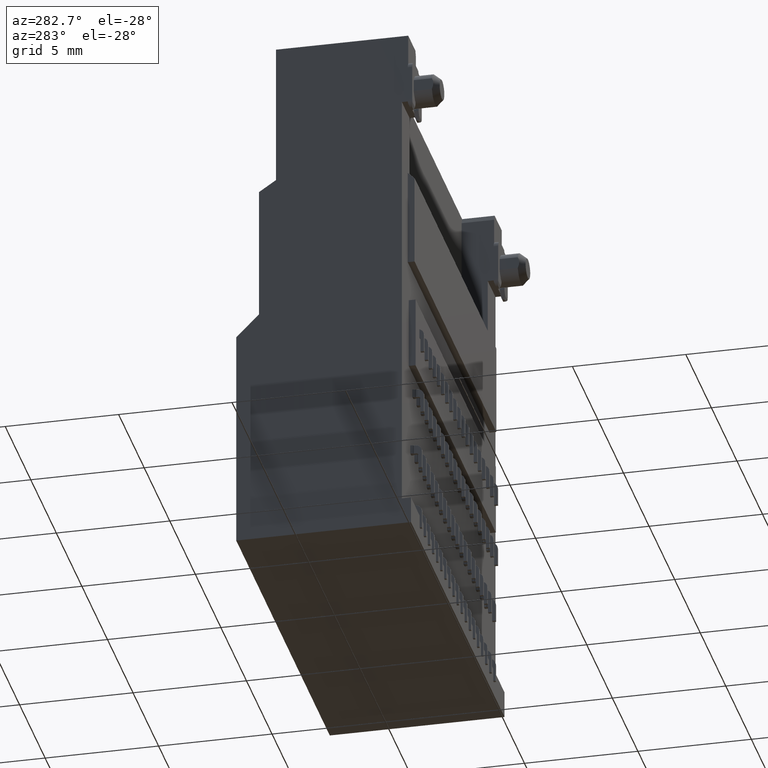
[diagram: clean part render]
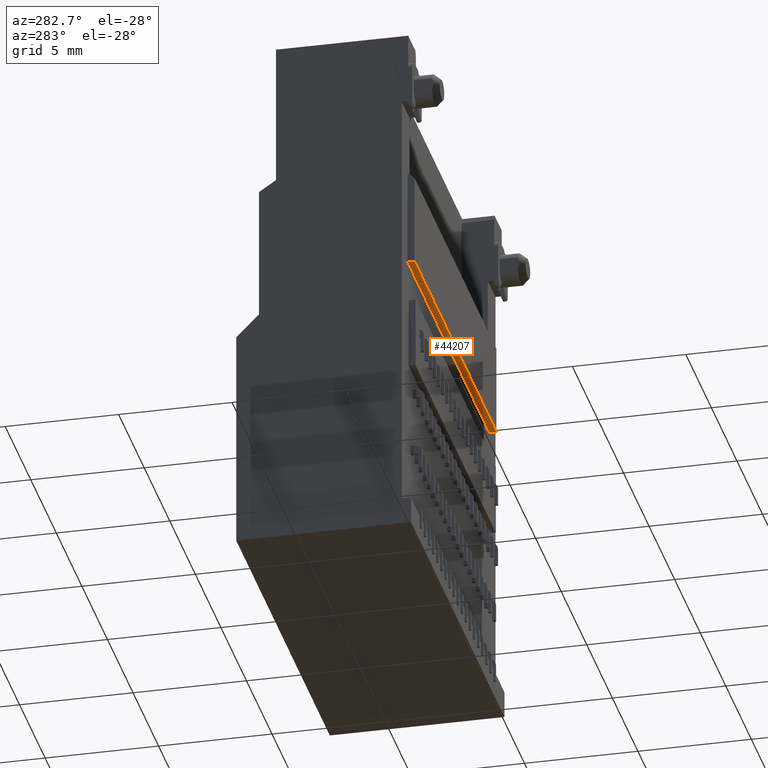
[diagram: same view with one face highlighted and labeled with its STEP entity id]
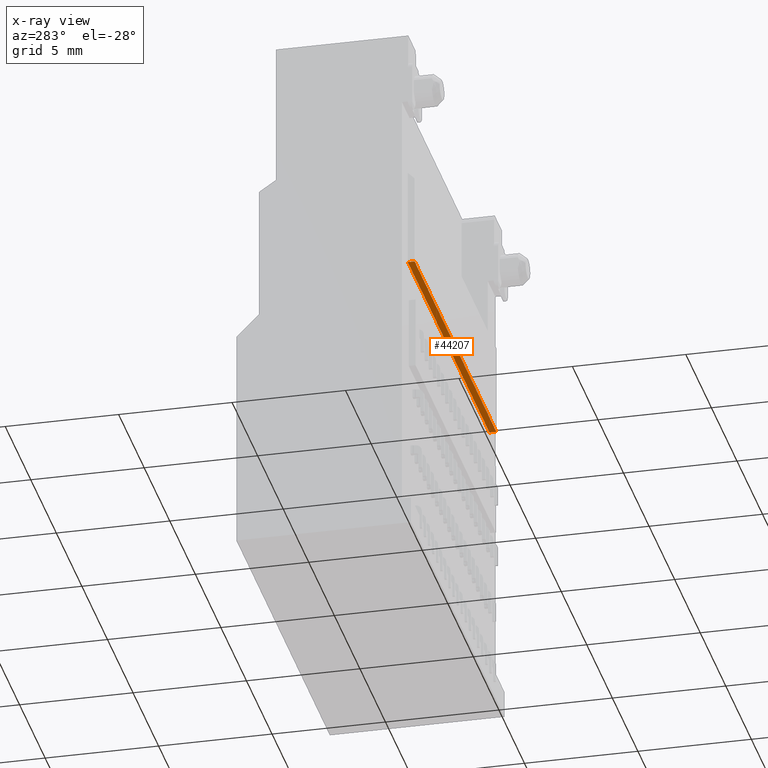
[diagram: x-ray of the same camera — body ghosted, the highlighted face saturated]
A machine part, auxiliary view. The second image highlights one B-rep face of the part: STEP entity #44207.
The next image is the same camera in x-ray: the body ghosted, the highlighted face saturated — about 0% of this face is hidden behind the body in this view.
In plain terms, the highlighted planar face has unit normal (0, 0, 1).
Its self-contained STEP definition (entity closure, byte-faithful):
#1659 = LINE ( 'NONE', #16921, #62890 ) ;
#3565 = EDGE_CURVE ( 'NONE', #34970, #59976, #1659, .T. ) ;
#4228 = ORIENTED_EDGE ( 'NONE', *, *, #3565, .F. ) ;
#5456 = CARTESIAN_POINT ( 'NONE',  ( 5.390005311599730398, 0.5000000000000000000, -1.399999999999999911 ) ) ;
#7512 = CARTESIAN_POINT ( 'NONE',  ( -10.60999468840028115, 0.2000000000000000111, -1.399999999999999911 ) ) ;
#9119 = CARTESIAN_POINT ( 'NONE',  ( -11.30999468840028044, 0.5000000000000000000, -1.399999999999999911 ) ) ;
#9503 = DIRECTION ( 'NONE',  ( -1.000000000000000000, 0.0000000000000000000, 0.0000000000000000000 ) ) ;
#14036 = CARTESIAN_POINT ( 'NONE',  ( -11.30999468840028044, 0.5999999999999999778, -1.399999999999999911 ) ) ;
#14804 = DIRECTION ( 'NONE',  ( 1.000000000000000000, 0.0000000000000000000, 0.0000000000000000000 ) ) ;
#15318 = ORIENTED_EDGE ( 'NONE', *, *, #50598, .T. ) ;
#16921 = CARTESIAN_POINT ( 'NONE',  ( -10.60999468840028115, 0.5000000000000000000, -1.399999999999999911 ) ) ;
#18754 = VECTOR ( 'NONE', #9503, 1000.000000000000000 ) ;
#21500 = VECTOR ( 'NONE', #22696, 1000.000000000000000 ) ;
#22128 = ORIENTED_EDGE ( 'NONE', *, *, #31954, .T. ) ;
#22696 = DIRECTION ( 'NONE',  ( 0.0000000000000000000, 1.000000000000000000, 0.0000000000000000000 ) ) ;
#27819 = CARTESIAN_POINT ( 'NONE',  ( 5.390005311599730398, 0.5000000000000000000, -1.399999999999999911 ) ) ;
#31954 = EDGE_CURVE ( 'NONE', #67828, #59976, #53952, .T. ) ;
#32486 = FACE_OUTER_BOUND ( 'NONE', #46763, .T. ) ;
#33320 = VECTOR ( 'NONE', #38975, 1000.000000000000000 ) ;
#34545 = DIRECTION ( 'NONE',  ( 0.0000000000000000000, -1.000000000000000000, 0.0000000000000000000 ) ) ;
#34970 = VERTEX_POINT ( 'NONE', #69939 ) ;
#35164 = AXIS2_PLACEMENT_3D ( 'NONE', #14036, #67613, #14804 ) ;
#38675 = PLANE ( 'NONE',  #35164 ) ;
#38975 = DIRECTION ( 'NONE',  ( 1.000000000000000000, 0.0000000000000000000, 0.0000000000000000000 ) ) ;
#42461 = CARTESIAN_POINT ( 'NONE',  ( 5.390005311599730398, 0.2000000000000000111, -1.399999999999999911 ) ) ;
#44207 = ADVANCED_FACE ( 'NONE', ( #32486 ), #38675, .F. ) ;
#46763 = EDGE_LOOP ( 'NONE', ( #4228, #15318, #70062, #22128 ) ) ;
#50598 = EDGE_CURVE ( 'NONE', #34970, #50755, #62016, .T. ) ;
#50755 = VERTEX_POINT ( 'NONE', #27819 ) ;
#53952 = LINE ( 'NONE', #74268, #18754 ) ;
#59976 = VERTEX_POINT ( 'NONE', #7512 ) ;
#62016 = LINE ( 'NONE', #9119, #33320 ) ;
#62890 = VECTOR ( 'NONE', #34545, 1000.000000000000000 ) ;
#65091 = EDGE_CURVE ( 'NONE', #67828, #50755, #72403, .T. ) ;
#67613 = DIRECTION ( 'NONE',  ( 0.0000000000000000000, 0.0000000000000000000, 1.000000000000000000 ) ) ;
#67828 = VERTEX_POINT ( 'NONE', #42461 ) ;
#69939 = CARTESIAN_POINT ( 'NONE',  ( -10.60999468840028115, 0.5000000000000000000, -1.399999999999999911 ) ) ;
#70062 = ORIENTED_EDGE ( 'NONE', *, *, #65091, .F. ) ;
#72403 = LINE ( 'NONE', #5456, #21500 ) ;
#74268 = CARTESIAN_POINT ( 'NONE',  ( -11.30999468840028044, 0.2000000000000000111, -1.399999999999999911 ) ) ;